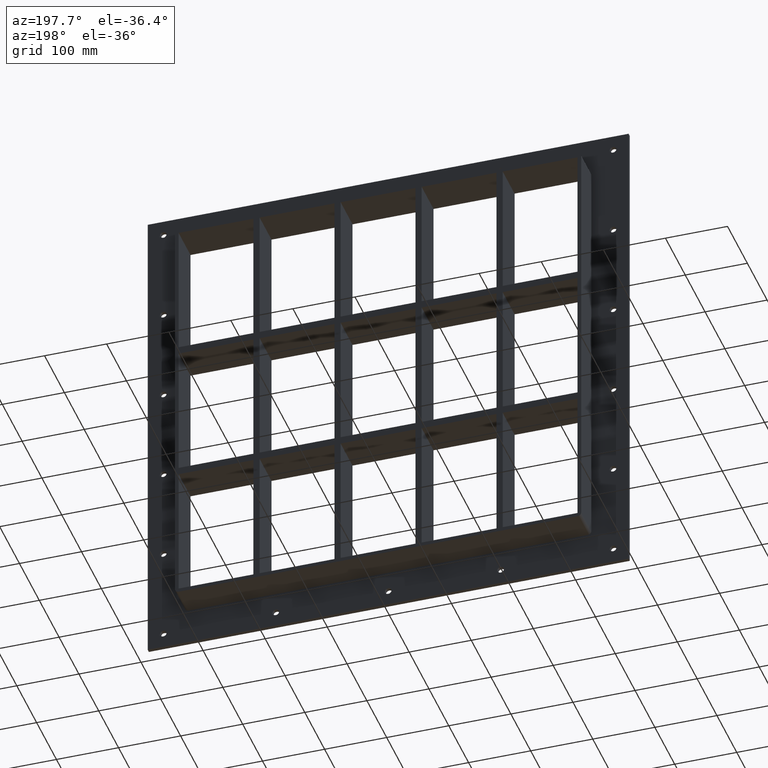
[diagram: clean part render]
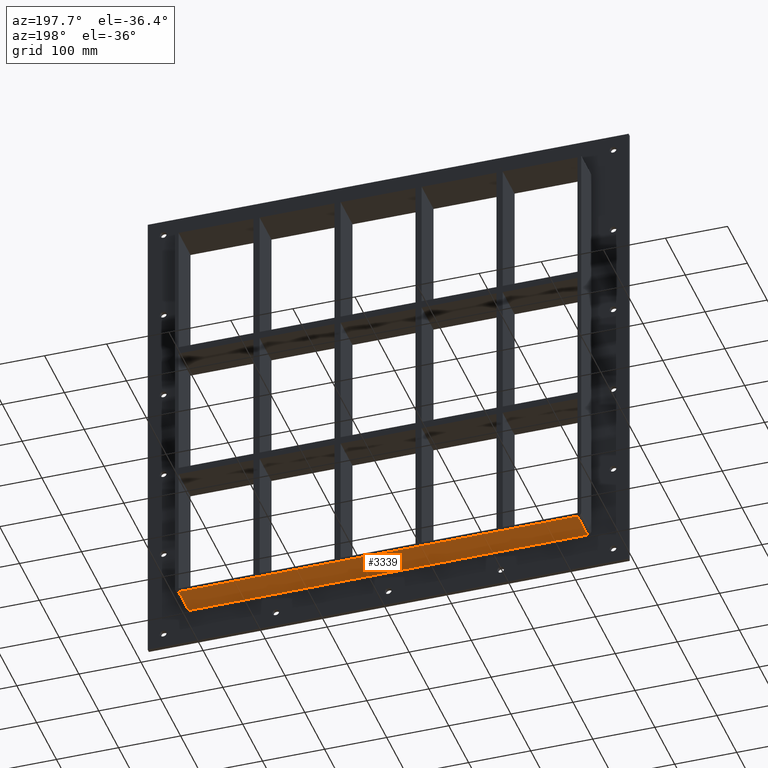
[diagram: same view with one face highlighted and labeled with its STEP entity id]
A machine part, auxiliary view. The second image highlights one B-rep face of the part: STEP entity #3339.
In plain terms, the highlighted planar face has unit normal (0, 0, -1).
Its self-contained STEP definition (entity closure, byte-faithful):
#1349=CARTESIAN_POINT('',(321.25,57.0,-345.00000000000006));
#1350=VERTEX_POINT('',#1349);
#1360=CARTESIAN_POINT('',(-321.24999999999994,57.0,-345.00000000000006));
#1361=VERTEX_POINT('',#1360);
#1362=CARTESIAN_POINT('',(321.25,57.0,-345.00000000000006));
#1363=DIRECTION('',(-1.0,0.0,0.0));
#1364=VECTOR('',#1363,642.5);
#1365=LINE('',#1362,#1364);
#1366=EDGE_CURVE('',#1350,#1361,#1365,.T.);
#2845=CARTESIAN_POINT('',(-321.25,6.000000000000001,-345.00000000000006));
#2846=VERTEX_POINT('',#2845);
#2856=CARTESIAN_POINT('',(321.25,6.000000000000001,-345.00000000000006));
#2857=VERTEX_POINT('',#2856);
#2858=CARTESIAN_POINT('',(321.25,6.000000000000001,-345.00000000000006));
#2859=DIRECTION('',(-1.0,0.0,0.0));
#2860=VECTOR('',#2859,642.5);
#2861=LINE('',#2858,#2860);
#2862=EDGE_CURVE('',#2857,#2846,#2861,.T.);
#3278=CARTESIAN_POINT('',(321.25,6.000000000000001,-345.00000000000006));
#3279=DIRECTION('',(0.0,1.0,0.0));
#3280=VECTOR('',#3279,51.0);
#3281=LINE('',#3278,#3280);
#3282=EDGE_CURVE('',#2857,#1350,#3281,.T.);
#3323=CARTESIAN_POINT('',(327.25,0.0,-345.00000000000006));
#3324=DIRECTION('',(0.0,0.0,-1.0));
#3325=DIRECTION('',(-1.0,0.0,0.0));
#3326=AXIS2_PLACEMENT_3D('',#3323,#3324,#3325);
#3327=PLANE('',#3326);
#3328=ORIENTED_EDGE('',*,*,#2862,.T.);
#3329=CARTESIAN_POINT('',(-321.25,57.0,-345.00000000000006));
#3330=DIRECTION('',(0.0,-1.0,0.0));
#3331=VECTOR('',#3330,51.0);
#3332=LINE('',#3329,#3331);
#3333=EDGE_CURVE('',#1361,#2846,#3332,.T.);
#3334=ORIENTED_EDGE('',*,*,#3333,.F.);
#3335=ORIENTED_EDGE('',*,*,#1366,.F.);
#3336=ORIENTED_EDGE('',*,*,#3282,.F.);
#3337=EDGE_LOOP('',(#3328,#3334,#3335,#3336));
#3338=FACE_OUTER_BOUND('',#3337,.T.);
#3339=ADVANCED_FACE('',(#3338),#3327,.T.);